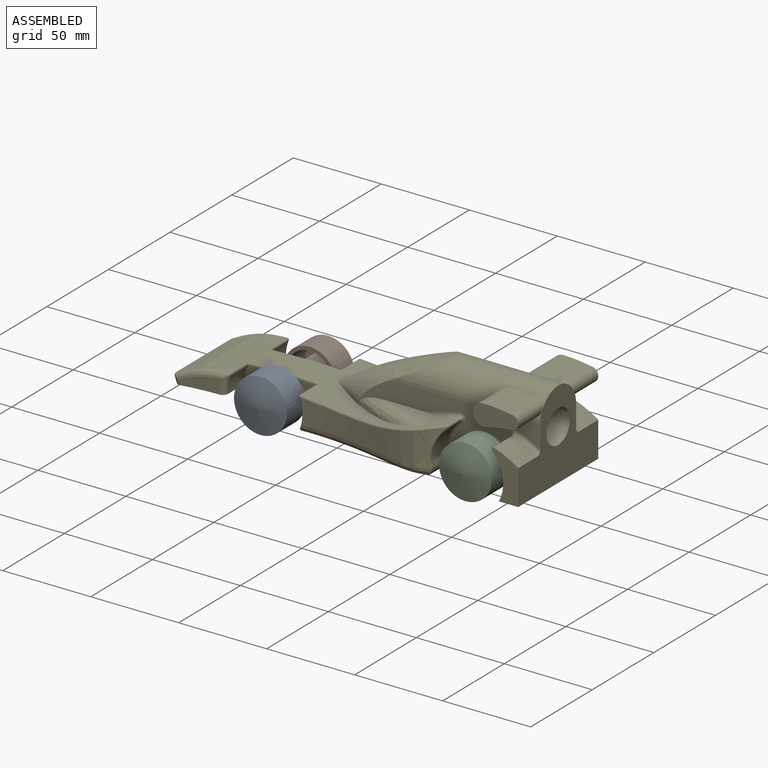
[diagram: assembled view]
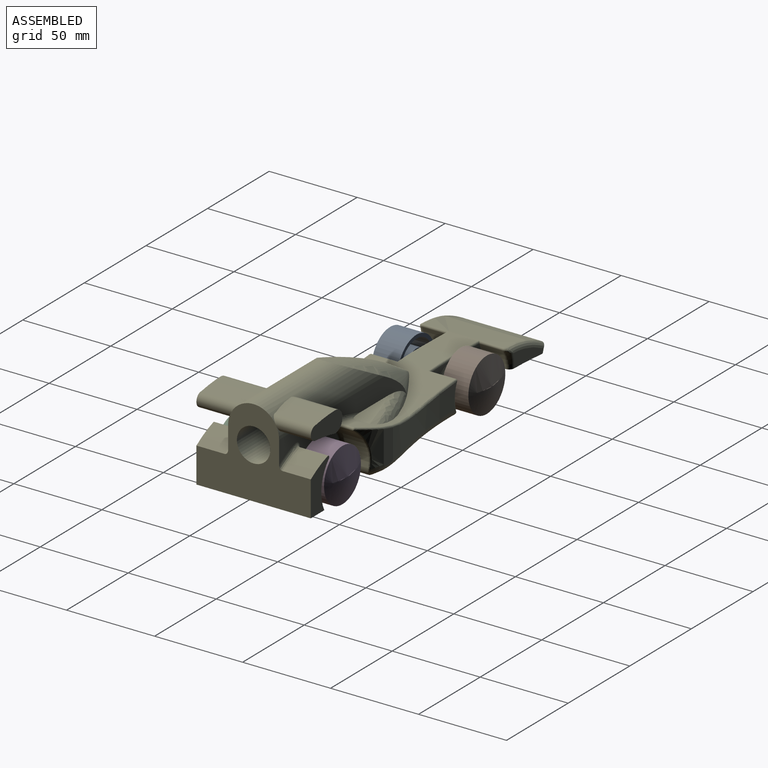
[diagram: assembled view, second angle]
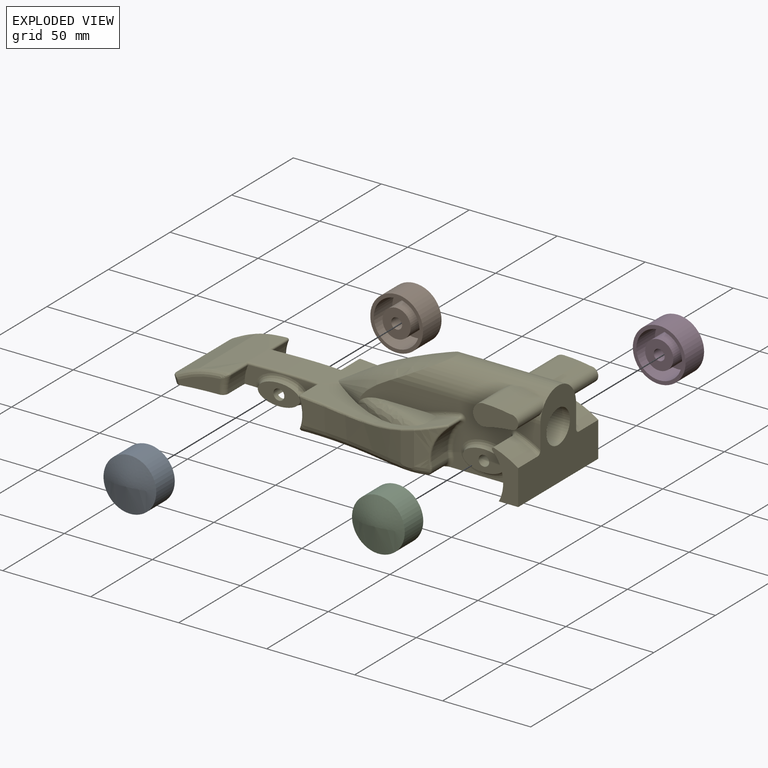
[diagram: exploded view]
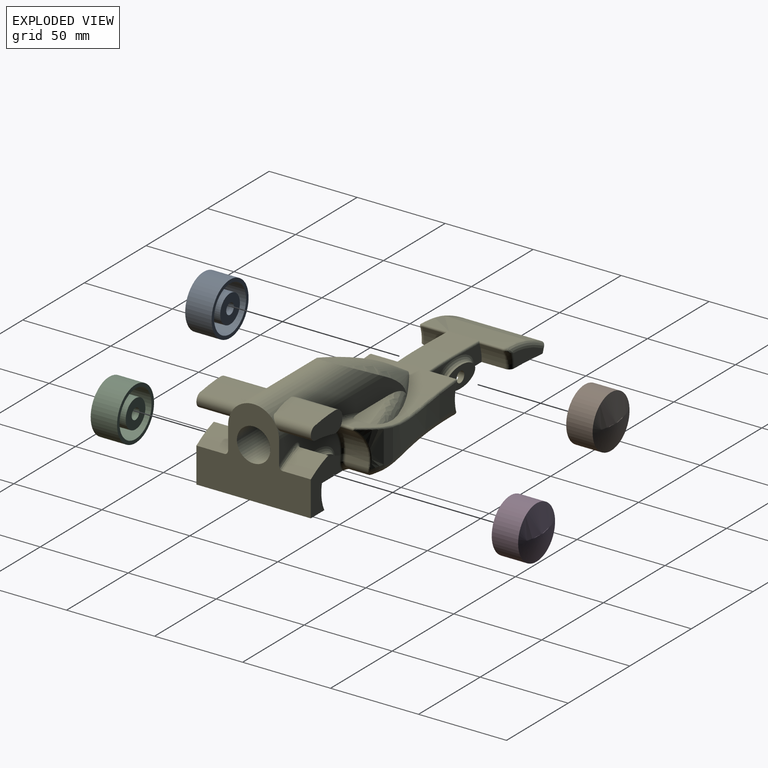
[diagram: exploded view, second angle]
ASSEMBLY  parts=5 mates=4
PART A: 9 faces, bbox 18.1x30x30 mm
  f0: cylinder r=13mm len=26mm, axis (-1,0,0), area 1225.2mm2, adj f2,f4
  f1: cylinder r=15mm len=30mm, axis (-1,0,0), area 1413.7mm2, adj f2,f3
  f2: plane 30x30mm, normal (1,0,0), area 175.9mm2, adj f0,f1
  f3: revolved ~30x30mm, area 730.8mm2, adj f1
  f4: plane 26x26mm, normal (1,0,0), area 329.9mm2, adj f0,f5
  f5: cylinder r=8mm len=16mm, axis (-1,0,0), area 754mm2, adj f4,f6
  f6: plane 16x16mm, normal (1,0,0), area 170.9mm2, adj f5,f7
  f7: cylinder r=3.1mm len=6.2mm, axis (1,0,0), area 116.9mm2, adj f6,f8
  f8: cone r=0mm half-angle=59deg, axis (1,0,0), area 35.2mm2, adj f7
PART B: same geometry as A
PART C: same geometry as A
PART D: same geometry as A
PART E: 179 faces, bbox 70.2x208.1x58.1 mm
  f0: cylinder r=300mm len=51.87mm, axis (-1,0,0), area 1904.5mm2, adj f2,f4,f15,f22,f23,f33,f44,f67
  f1: extruded ~156.57x63mm, area 3923.5mm2, adj f3,f11,f32,f46,f47,f48,f51,f52
  f2: cylinder r=21.5mm len=13.43mm, axis (1,0,0), area 135.3mm2, adj f0,f3,f15,f102
  f3: cylinder r=1mm len=14.43mm, axis (-1,0,0), area 27.7mm2, adj f1,f2,f15,f48,f101
  f4: plane 3.55x2.25mm, normal (0.71,0.67,-0.22), area 5.6mm2, adj f0,f68,f96,f98
  f5: plane 63.79x47.13mm, normal (0,0,-1), area 968.6mm2, adj f73,f74,f83,f84,f85,f86,f87,f89
  f6: plane 9.18x1.63mm, normal (0,0,-1), area 0.4mm2, adj f74,f83
  f7: plane 55.6x54.94mm, normal (0,0,-1), area 1174.1mm2, adj f72,f76,f77,f78,f79,f80,f81,f90
  f8: plane 130.59x65.58mm, normal (0,0,-1), area 1881mm2, adj f9,f12,f16,f18,f20,f56,f59,f60
  f9: plane 65.51x42.79mm, normal (0,-1,0), area 1657.3mm2, adj f8,f12,f14,f16,f26,f28,f37,f62
  f10: cylinder r=300mm len=25mm, axis (-1,0,0), area 350.1mm2, adj f15,f18,f22,f23,f33,f44,f110,f115
  f11: revolved ~66.54x64.27mm, area 1950.7mm2, adj f1,f12,f26,f27,f71,f107,f153
  f12: plane 107.44x39.46mm, normal (1,0,0), area 1404.7mm2, adj f8,f9,f11,f26,f32,f43,f60,f61
  f13: plane 22.47x10.35mm, normal (1,0,0), area 136.7mm2, adj f30,f31,f52,f53,f56
  f14: extruded ~16x13.67mm, area 244.7mm2, adj f9,f16,f45,f62
  f15: plane 43x17.26mm, normal (1,0,0), area 204.9mm2, adj f0,f2,f3,f10,f18,f19,f44,f47
  f16: plane 26.86x14.97mm, normal (1,0,0), area 234.3mm2, adj f8,f9,f14,f20,f45
  f17: plane 25.19x7.31mm, normal (0,-1,0), area 130.7mm2, adj f26,f37
  f18: plane 48.22x6.2mm, normal (0,1,0), area 170.1mm2, adj f8,f10,f15,f19,f49,f56,f110,f112
  f19: cylinder r=21.5mm len=16.39mm, axis (1,0,0), area 242.6mm2, adj f15,f18,f47,f49
  f20: cylinder r=21.5mm len=25.09mm, axis (1,0,0), area 434.1mm2, adj f8,f16,f45,f60
  f21: cylinder r=21.5mm len=19.88mm, axis (1,0,0), area 237.4mm2, adj f46,f55,f59,f64
  f22: plane 22.18x4.56mm, normal (-1,0,0), area 61.4mm2, adj f0,f10,f23,f33
  f23: extruded ~22.18x4.56mm, area 72.7mm2, adj f0,f10,f22,f24
  f24: plane 25.28x13.28mm, normal (1,0,0), area 196mm2, adj f23,f33,f44
  f25: plane 24x12mm, normal (1,0,0), area 197.9mm2, adj f34,f43
  f26: cylinder r=14.5mm len=85.41mm, axis (0,-1,0), area 2522.2mm2, adj f9,f11,f12,f17,f27,f37,f38,f39
  f27: plane 2.88x0.07mm, normal (0,1,0), area 0.1mm2, adj f11,f26
  f28: cylinder r=9.5mm len=52mm, axis (0,-1,0), area 2921.7mm2, adj f9,f29,f35,f36
  f29: cone r=0mm half-angle=59deg, axis (0,-1,0), area 330.8mm2, adj f28
  f30: extruded ~21.56x14.58mm, area 176.6mm2, adj f13,f53,f55,f56,f57
  f31: extruded ~62.6x16.22mm, area 810.9mm2, adj f13,f49,f51,f52,f56
  f32: plane 31.82x12.21mm, normal (0,0,1), area 175.9mm2, adj f1,f12,f66,f71
  f33: cylinder r=3.1mm len=25mm, axis (1,0,0), area 384.2mm2, adj f0,f10,f22,f24,f115,f117
  f34: cylinder r=3mm len=35mm, axis (1,0,0), area 659.7mm2, adj f25,f118
  f35: cylinder r=90mm len=15.19mm, axis (-1,0,0), area 121.1mm2, adj f28,f36
  f36: cylinder r=6mm len=12.85mm, axis (-1,0,0), area 0mm2, adj f28,f35
  f37: cylinder r=4mm len=65mm, axis (-1,0,0), area 520.1mm2, adj f9,f17,f26,f40,f41,f42,f124,f125
  f38: cylinder r=6mm len=25.14mm, axis (-1,0,0), area 411.7mm2, adj f26,f39,f41,f42
  f39: cylinder r=90mm len=18.31mm, axis (-1,0,0), area 279.9mm2, adj f26,f38,f40,f42
  f40: plane 18.31x0.68mm, normal (0,0,-1), area 12.5mm2, adj f26,f37,f39,f42
  f41: cylinder r=90mm len=25.14mm, axis (-1,0,0), area 369.5mm2, adj f26,f37,f38,f42
  f42: plane 25.68x12mm, normal (1,0,0), area 237.7mm2, adj f37,f38,f39,f40,f41
  f43: bspline ~30.01x18.02mm, area 306.2mm2, adj f12,f25
  f44: bspline ~30x14.54mm, area 175mm2, adj f0,f10,f15,f24
  f45: cylinder r=1mm len=16mm, axis (-1,0,0), area 42.6mm2, adj f14,f16,f20,f61
  f46: cylinder r=1mm len=8.82mm, axis (-1,0,0), area 22.9mm2, adj f1,f21,f54,f65
  f47: cylinder r=1mm len=15.43mm, axis (-1,0,0), area 30.2mm2, adj f1,f15,f19,f48,f50
  f48: bspline ~46.3x1.69mm, area 63.5mm2, adj f1,f3,f15,f47
  f49: bspline ~21.26x3.84mm, area 24.7mm2, adj f18,f19,f31,f50,f56
  f50: sphere r=1mm, area 2.1mm2, adj f47,f49,f51
  f51: bspline ~64.19x8.71mm, area 99mm2, adj f1,f31,f50,f52
  f52: bspline ~16.57x5.24mm, area 12.1mm2, adj f1,f13,f31,f51,f53
  f53: bspline ~18.55x9.21mm, area 27.1mm2, adj f1,f13,f30,f52,f54
  f54: sphere r=1mm, area 1.6mm2, adj f46,f53,f55
  f55: bspline ~23.13x9.05mm, area 26.4mm2, adj f21,f30,f54,f57
  f56: bspline ~87.13x12.82mm, area 603.4mm2, adj f8,f13,f18,f30,f31,f49,f58
  f57: bspline ~2.58x1.06mm, area 1mm2, adj f30,f55,f58,f59
  f58: bspline ~6.06x5mm, area 3.9mm2, adj f56,f57,f59
  f59: cylinder r=5mm len=12.9mm, axis (1,0,0), area 105.7mm2, adj f8,f21,f57,f58,f63
  f60: torus R=19.5mm, axis (1,0,0), area 84.1mm2, adj f8,f12,f20,f61
  f61: torus R=3mm, axis (1,0,0), area 14.4mm2, adj f12,f45,f60,f62
  f62: bspline ~21.38x10.5mm, area 46.6mm2, adj f9,f12,f14,f61
  f63: torus R=7mm, axis (1,0,0), area 24.3mm2, adj f8,f12,f59,f64
  f64: torus R=19.5mm, axis (1,0,0), area 66.4mm2, adj f12,f21,f63,f65
  f65: torus R=3mm, axis (1,0,0), area 14.1mm2, adj f12,f46,f64,f66
  f66: bspline ~33.04x9.31mm, area 52.4mm2, adj f1,f12,f32,f65
  f67: plane 40.86x2.94mm, normal (0,0.95,-0.31), area 126.6mm2, adj f0,f68,f70,f151
  f68: cylinder r=5mm len=3.9mm, axis (0,0.31,0.95), area 13.2mm2, adj f0,f4,f67,f69,f97
  f69: bspline ~4.84x1.9mm, area 4.3mm2, adj f1,f68,f70,f97
  f70: cylinder r=1mm len=40.86mm, axis (-1,0,0), area 55.8mm2, adj f1,f67,f69,f152
  f71: bspline ~51.72x24.77mm, area 218mm2, adj f1,f11,f12,f32
  f72: plane 55.6x6mm, normal (0,1,0), area 333.6mm2, adj f7,f8,f81,f161
  f73: plane 30.38x14mm, normal (0,-1,0), area 425.4mm2, adj f5,f8,f74,f154
  f74: extruded ~64.58x14mm, area 782mm2, adj f5,f6,f8,f73,f75,f82,f83,f84
  f75: plane 9x6.2mm, normal (0,1,0), area 55.8mm2, adj f8,f74,f76,f90
  f76: plane 6.22x2.2mm, normal (-0.85,0.53,0), area 15.6mm2, adj f7,f8,f75,f77,f90
  f77: extruded ~7.41x6mm, area 48.1mm2, adj f7,f8,f76,f78
  f78: plane 37.87x6mm, normal (-1,0,0), area 227.2mm2, adj f7,f8,f77,f79
  f79: extruded ~6.99x6.7mm, area 64.6mm2, adj f7,f8,f78,f80
  f80: plane 11.3x6mm, normal (0,-1,0), area 67.8mm2, adj f7,f8,f79,f81
  f81: plane 6x1.57mm, normal (-1,0,0), area 9.4mm2, adj f7,f8,f72,f80
  f82: plane 5.45x0.43mm, normal (0,0,-1), area 0.3mm2, adj f74,f84
  f83: plane 9.17x8mm, normal (-0.98,-0.17,0), area 74.5mm2, adj f5,f6,f74,f84
  f84: plane 8x5.44mm, normal (-1,-0.08,0), area 43.7mm2, adj f5,f74,f82,f83,f85
  f85: plane 46.01x5mm, normal (0,1,0), area 230mm2, adj f5,f84,f90,f164
  f86: extruded ~56.02x26.78mm, area 784.2mm2, adj f5,f87,f93,f94,f169,f170
  f87: plane 26.78x13.61mm, normal (0,1,0), area 322.9mm2, adj f5,f86,f91,f92,f167,f168
  f88: plane 43.05x19.84mm, normal (-1,0,0), area 476.5mm2, adj f89,f92,f93
  f89: cylinder r=3mm len=52.08mm, axis (0,1,0), area 224.1mm2, adj f5,f88,f91,f94
  f90: cylinder r=3mm len=46.01mm, axis (1,0,0), area 195.5mm2, adj f7,f74,f75,f76,f85,f154,f155,f156
  f91: torus R=6mm, axis (0,-1,0), area 18.9mm2, adj f5,f87,f89,f92
  f92: cylinder r=3mm len=23.78mm, axis (0,0,1), area 102.7mm2, adj f87,f88,f91,f93
  f93: bspline ~65.43x30.13mm, area 235.8mm2, adj f86,f88,f92,f94
  f94: bspline ~12.16x6.97mm, area 35.6mm2, adj f5,f86,f89,f93
  f95: plane 24.06x9.3mm, normal (1,0,0), area 143.4mm2, adj f0,f96,f100,f102
  f96: cylinder r=3mm len=4.46mm, axis (0,-0.31,-0.95), area 7.4mm2, adj f0,f4,f95,f99
  f97: bspline ~2.28x1.81mm, area 0.8mm2, adj f68,f69,f98,f100
  f98: bspline ~3x2.82mm, area 2.1mm2, adj f4,f97,f99,f100
  f99: bspline ~2.85x1.54mm, area 0.9mm2, adj f96,f98,f100
  f100: bspline ~36.6x11.86mm, area 137.1mm2, adj f1,f95,f97,f98,f99,f101
  f101: bspline ~4.42x3.75mm, area 4.8mm2, adj f3,f100,f102
  f102: torus R=24.5mm, axis (1,0,0), area 42.6mm2, adj f0,f2,f95,f101
  f103: cylinder r=21.5mm len=13.43mm, axis (-1,0,0), area 135.3mm2, adj f0,f104,f110,f178
  f104: cylinder r=1mm len=14.43mm, axis (1,0,0), area 27.7mm2, adj f1,f103,f110,f132,f177
  f105: plane 3.55x2.25mm, normal (-0.71,0.67,-0.22), area 5.6mm2, adj f0,f151,f172,f174
  f106: plane 9.18x1.63mm, normal (0,0,-1), area 0.4mm2, adj f154,f163
  f107: plane 107.44x39.46mm, normal (-1,0,0), area 1404.7mm2, adj f8,f9,f11,f26,f121,f127,f144,f145
  f108: plane 22.47x10.35mm, normal (-1,0,0), area 136.7mm2, adj f119,f120,f136,f137,f140
  f109: extruded ~16x13.67mm, area 244.7mm2, adj f9,f111,f129,f146
  f110: plane 43x17.26mm, normal (-1,0,0), area 204.9mm2, adj f0,f10,f18,f103,f104,f112,f128,f131
  f111: plane 26.86x14.97mm, normal (-1,0,0), area 234.3mm2, adj f8,f9,f109,f113,f129
  f112: cylinder r=21.5mm len=16.39mm, axis (-1,0,0), area 242.6mm2, adj f18,f110,f131,f133
  f113: cylinder r=21.5mm len=25.09mm, axis (-1,0,0), area 434.1mm2, adj f8,f111,f129,f144
  f114: cylinder r=21.5mm len=19.88mm, axis (-1,0,0), area 237.4mm2, adj f130,f139,f143,f148
  f115: plane 22.18x4.56mm, normal (1,0,0), area 61.4mm2, adj f0,f10,f33,f116
  f116: extruded ~22.18x4.56mm, area 72.7mm2, adj f0,f10,f115,f117
  f117: plane 25.28x13.28mm, normal (-1,0,0), area 196mm2, adj f33,f116,f128
  f118: plane 24x12mm, normal (-1,0,0), area 197.9mm2, adj f34,f127
  f119: extruded ~21.56x14.58mm, area 176.6mm2, adj f108,f137,f139,f140,f141
  f120: extruded ~62.6x16.22mm, area 810.9mm2, adj f108,f133,f135,f136,f140
  f121: plane 31.82x12.21mm, normal (0,0,1), area 175.9mm2, adj f1,f107,f150,f153
  f122: cylinder r=6mm len=25.14mm, axis (1,0,0), area 411.7mm2, adj f26,f123,f125,f126
  f123: cylinder r=90mm len=18.31mm, axis (1,0,0), area 279.9mm2, adj f26,f122,f124,f126
  f124: plane 18.31x0.68mm, normal (0,0,-1), area 12.5mm2, adj f26,f37,f123,f126
  f125: cylinder r=90mm len=25.14mm, axis (1,0,0), area 369.5mm2, adj f26,f37,f122,f126
  f126: plane 25.68x12mm, normal (-1,0,0), area 237.7mm2, adj f37,f122,f123,f124,f125
  f127: bspline ~30.01x18.02mm, area 306.2mm2, adj f107,f118
  f128: bspline ~30x14.54mm, area 175mm2, adj f0,f10,f110,f117
  f129: cylinder r=1mm len=16mm, axis (1,0,0), area 42.6mm2, adj f109,f111,f113,f145
  f130: cylinder r=1mm len=8.82mm, axis (1,0,0), area 22.9mm2, adj f1,f114,f138,f149
  f131: cylinder r=1mm len=15.43mm, axis (1,0,0), area 30.2mm2, adj f1,f110,f112,f132,f134
  f132: bspline ~46.3x1.69mm, area 63.5mm2, adj f1,f104,f110,f131
  f133: bspline ~21.26x3.84mm, area 24.7mm2, adj f18,f112,f120,f134,f140
  f134: sphere r=1mm, area 2.1mm2, adj f131,f133,f135
  f135: bspline ~64.19x8.71mm, area 99mm2, adj f1,f120,f134,f136
  f136: bspline ~16.57x5.24mm, area 12.1mm2, adj f1,f108,f120,f135,f137
  f137: bspline ~18.55x9.21mm, area 27.1mm2, adj f1,f108,f119,f136,f138
  f138: sphere r=1mm, area 1.6mm2, adj f130,f137,f139
  f139: bspline ~23.13x9.05mm, area 26.4mm2, adj f114,f119,f138,f141
  f140: bspline ~87.61x12.82mm, area 603.4mm2, adj f8,f18,f108,f119,f120,f133,f142
  f141: bspline ~2.58x1.06mm, area 1mm2, adj f119,f139,f142,f143
  f142: bspline ~5x5mm, area 3.9mm2, adj f140,f141,f143
  f143: cylinder r=5mm len=12.9mm, axis (-1,0,0), area 105.7mm2, adj f8,f114,f141,f142,f147
  f144: torus R=19.5mm, axis (-1,0,0), area 84.1mm2, adj f8,f107,f113,f145
  f145: torus R=3mm, axis (-1,0,0), area 14.4mm2, adj f107,f129,f144,f146
  f146: bspline ~21.38x10.5mm, area 46.6mm2, adj f9,f107,f109,f145
  f147: torus R=7mm, axis (-1,0,0), area 24.3mm2, adj f8,f107,f143,f148
  f148: torus R=19.5mm, axis (-1,0,0), area 66.4mm2, adj f107,f114,f147,f149
  f149: torus R=3mm, axis (-1,0,0), area 14.1mm2, adj f107,f130,f148,f150
  f150: bspline ~33.04x9.31mm, area 52.4mm2, adj f1,f107,f121,f149
  f151: cylinder r=5mm len=3.9mm, axis (0,0.31,0.95), area 13.2mm2, adj f0,f67,f105,f152,f173
  f152: bspline ~4.84x1.9mm, area 4.3mm2, adj f1,f70,f151,f173
  f153: bspline ~51.72x24.77mm, area 218mm2, adj f1,f11,f107,f121
  f154: extruded ~64.58x14mm, area 782mm2, adj f5,f8,f73,f90,f106,f155,f162,f163
  f155: plane 9x6.2mm, normal (0,1,0), area 55.8mm2, adj f8,f90,f154,f156
  f156: plane 6.22x2.2mm, normal (0.85,0.53,0), area 15.6mm2, adj f7,f8,f90,f155,f157
  f157: extruded ~7.41x6mm, area 48.1mm2, adj f7,f8,f156,f158
  f158: plane 37.87x6mm, normal (1,0,0), area 227.2mm2, adj f7,f8,f157,f159
  f159: extruded ~6.99x6.7mm, area 64.6mm2, adj f7,f8,f158,f160
  f160: plane 11.3x6mm, normal (0,-1,0), area 67.8mm2, adj f7,f8,f159,f161
  f161: plane 6x1.57mm, normal (1,0,0), area 9.4mm2, adj f7,f8,f72,f160
  f162: plane 5.45x0.43mm, normal (0,0,-1), area 0.3mm2, adj f154,f164
  f163: plane 9.17x8mm, normal (0.98,-0.17,0), area 74.5mm2, adj f5,f106,f154,f164
  f164: plane 8x5.44mm, normal (1,-0.08,0), area 43.7mm2, adj f5,f85,f154,f162,f163
  f165: plane 43.05x19.84mm, normal (1,0,0), area 476.5mm2, adj f166,f168,f169
  f166: cylinder r=3mm len=52.08mm, axis (0,1,0), area 224.1mm2, adj f5,f165,f167,f170
  f167: torus R=6mm, axis (0,-1,0), area 18.9mm2, adj f5,f87,f166,f168
  f168: cylinder r=3mm len=23.78mm, axis (0,0,1), area 102.7mm2, adj f87,f165,f167,f169
  f169: bspline ~65.43x30.13mm, area 235.8mm2, adj f86,f165,f168,f170
  f170: bspline ~13.54x7.82mm, area 35.6mm2, adj f5,f86,f166,f169
  f171: plane 24.06x9.3mm, normal (-1,0,0), area 143.4mm2, adj f0,f172,f176,f178
  f172: cylinder r=3mm len=4.46mm, axis (0,-0.31,-0.95), area 7.4mm2, adj f0,f105,f171,f175
  f173: bspline ~2.28x1.81mm, area 0.8mm2, adj f151,f152,f174,f176
  f174: bspline ~2.54x2.46mm, area 2.1mm2, adj f105,f173,f175,f176
  f175: bspline ~2.85x1.54mm, area 0.9mm2, adj f172,f174,f176
  f176: bspline ~36.6x11.86mm, area 137.1mm2, adj f1,f171,f173,f174,f175,f177
  f177: bspline ~4.42x3.75mm, area 4.8mm2, adj f104,f176,f178
  f178: torus R=24.5mm, axis (-1,0,0), area 42.6mm2, adj f0,f103,f171,f177
PLACE A rot(axis=(0.58,0.58,0.58),120deg) t=(-33.39,-107.11,-5.97)mm
PLACE B rot(axis=(-0.58,0.58,-0.58),120deg) t=(-33.39,-67.11,-5.97)mm
PLACE C rot(axis=(0.58,0.58,0.58),120deg) t=(86.61,-112.11,-5.97)mm
PLACE D rot(axis=(-0.58,0.58,-0.58),120deg) t=(86.61,-65.11,-5.97)mm
PLACE E rot(axis=(0,0,1),90deg) t=(116.61,-87.11,4.03)mm fixed
MATE fastened D.f0 <-> E.f20  axis (0,-1,0) through (86.61,-72.61,-5.97)mm
MATE fastened C.f0 <-> E.f20  axis (0,-1,0) through (86.61,-104.61,-5.97)mm
MATE fastened B.f0 <-> E.f2  axis (0,-1,0) through (-33.39,-74.61,-5.97)mm
MATE fastened A.f0 <-> E.f2  axis (0,1,0) through (-33.39,-99.61,-5.97)mm
